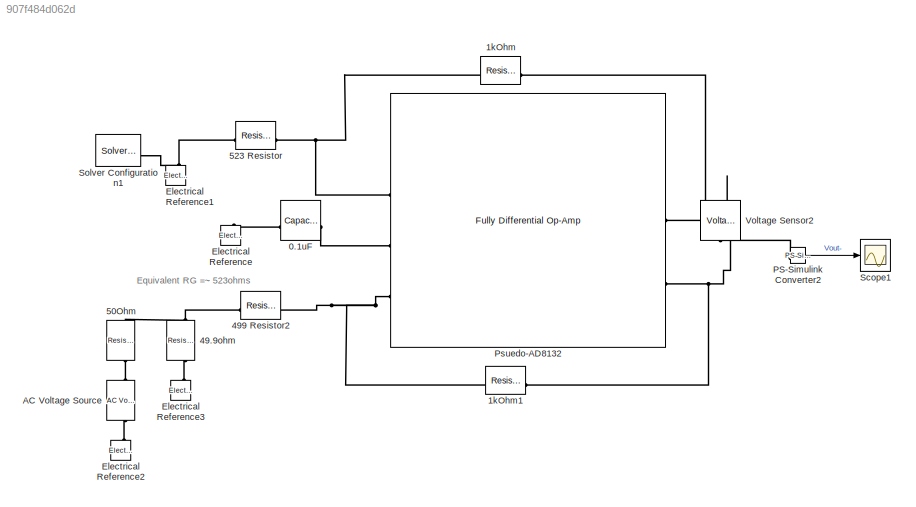
MODEL slx_907f484d062d
KIND model
CONFIG AbsTol = auto
CONFIG EnableMultiTasking = off
CONFIG FixedStep = auto
CONFIG MaxStep = auto
CONFIG MinStep = auto
CONFIG RelTol = 1e-3
CONFIG SampleTimeConstraint = Unconstrained
CONFIG SolverName = VariableStepAuto
CONFIG StartTime = 0.0
CONFIG StopTime = .5
BLOCK [Reference] 0.1uF  REF=ee_lib/Passive/Capacitor
  SourceBlock = ee_lib/Passive/Capacitor
  SourceType = Capacitor
BLOCK [Reference] 1kOhm  REF=ee_lib/Passive/Resistor
  SourceBlock = ee_lib/Passive/Resistor
  SourceType = Resistor
BLOCK [Reference] 1kOhm1  REF=ee_lib/Passive/Resistor
  SourceBlock = ee_lib/Passive/Resistor
  SourceType = Resistor
BLOCK [Reference] 49.9ohm  REF=ee_lib/Passive/Resistor
  NameLocation = right
  SourceBlock = ee_lib/Passive/Resistor
  SourceType = Resistor
BLOCK [Reference] 499 Resistor2  REF=ee_lib/Passive/Resistor
  SourceBlock = ee_lib/Passive/Resistor
  SourceType = Resistor
BLOCK [Reference] 50Ohm  REF=ee_lib/Passive/Resistor
  NameLocation = right
  SourceBlock = ee_lib/Passive/Resistor
  SourceType = Resistor
BLOCK [Reference] 523 Resistor  REF=fl_lib/Electrical/Electrical Elements/Resistor
  SourceBlock = fl_lib/Electrical/Electrical Elements/Resistor
  SourceType = Resistor
BLOCK [Reference] AC Voltage Source  REF=fl_lib/Electrical/Electrical Sources/AC Voltage Source
  NameLocation = right
  SourceBlock = fl_lib/Electrical/Electrical Sources/AC Voltage Source
  SourceType = AC Voltage Source
BLOCK [Reference] Electrical Reference  REF=fl_lib/Electrical/Electrical Elements/Electrical Reference
  LibrarySourceBlock = ee_lib/Connectors &\nReferences/Electrical Reference
  NameLocation = right
  SourceBlock = fl_lib/Electrical/Electrical Elements/Electrical Reference
  SourceType = Electrical Reference
BLOCK [Reference] Electrical Reference1  REF=fl_lib/Electrical/Electrical Elements/Electrical Reference
  LibrarySourceBlock = ee_lib/Connectors &\nReferences/Electrical Reference
  NameLocation = right
  SourceBlock = fl_lib/Electrical/Electrical Elements/Electrical Reference
  SourceType = Electrical Reference
BLOCK [Reference] Electrical Reference2  REF=fl_lib/Electrical/Electrical Elements/Electrical Reference
  LibrarySourceBlock = ee_lib/Connectors &\nReferences/Electrical Reference
  NameLocation = right
  SourceBlock = fl_lib/Electrical/Electrical Elements/Electrical Reference
  SourceType = Electrical Reference
BLOCK [Reference] Electrical Reference3  REF=fl_lib/Electrical/Electrical Elements/Electrical Reference
  LibrarySourceBlock = ee_lib/Connectors &\nReferences/Electrical Reference
  NameLocation = right
  SourceBlock = fl_lib/Electrical/Electrical Elements/Electrical Reference
  SourceType = Electrical Reference
BLOCK [Reference] PS-Simulink Converter2  REF=nesl_utility/PS-Simulink
Converter
  SourceBlock = nesl_utility/PS-Simulink\nConverter
  SourceType = PS-Simulink\nConverter
BLOCK [Reference] Psuedo-AD8132  REF=ee_lib/Integrated Circuits/Fully Differential
Op-Amp
  SourceBlock = ee_lib/Integrated Circuits/Fully Differential\nOp-Amp
  SourceType = Fully Differential\nOp-Amp
BLOCK [Scope] Scope1
  Floating = off
  NumInputPorts = 1
  ScopeSpecificationString = Simulink.scopes.TimeScopeBlockCfg('CurrentConfiguration', extmgr.ConfigurationSet(extmgr.Configuration('Core','General UI',true),extmgr.Configuration('Core','Source UI',true),extmgr.Configuration('Sources','WiredSimulink',true,'DataLoggingVariableName','ScopeData1'),extmgr.Configuration('Visuals','Time Domain',true,'SerializedDisplays',{struct('MinYLimReal','-1.15639','MaxYLimReal','1.15593','YLab...<+1509ch>
BLOCK [Reference] Solver Configuration1  REF=nesl_utility/Solver
Configuration
  SourceBlock = nesl_utility/Solver\nConfiguration
  SourceType = Solver\nConfiguration
BLOCK [Reference] Voltage Sensor2  REF=fl_lib/Electrical/Electrical Sensors/Voltage Sensor
  NameLocation = right
  SourceBlock = fl_lib/Electrical/Electrical Sensors/Voltage Sensor
  SourceType = Voltage Sensor
ANNOTATION (root): Equivalent RG =~ 523ohms
LINE PS-Simulink Converter2:1 -> Scope1:1
PLINE 0.1uF:LConn1 -- Electrical Reference:LConn1
PLINE 0.1uF:RConn1 -- Psuedo-AD8132:LConn2
PNET net1: 1kOhm1:LConn1 -- 499 Resistor2:RConn1 -- Psuedo-AD8132:LConn3
PNET net2: 1kOhm1:RConn1 -- Psuedo-AD8132:RConn2 -- Voltage Sensor2:RConn2
PNET net3: 1kOhm:LConn1 -- 523 Resistor:RConn1 -- Psuedo-AD8132:LConn1
PNET net4: 1kOhm:RConn1 -- Psuedo-AD8132:RConn1 -- Voltage Sensor2:LConn1
PNET net5: 49.9ohm:LConn1 -- 499 Resistor2:LConn1 -- 50Ohm:RConn1
PLINE 49.9ohm:RConn1 -- Electrical Reference3:LConn1
PLINE 50Ohm:LConn1 -- AC Voltage Source:LConn1
PNET net6: 523 Resistor:LConn1 -- Electrical Reference1:LConn1 -- Solver Configuration1:RConn1
PLINE AC Voltage Source:RConn1 -- Electrical Reference2:LConn1
PLINE PS-Simulink Converter2:LConn1 -- Voltage Sensor2:RConn1
note: PNET lines group multi-terminal physical nets as a canonical sorted terminal list (undirected conserving connections); 2-terminal nets keep the pairwise PLINE form
